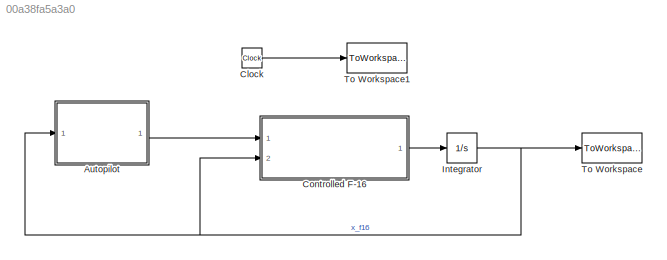
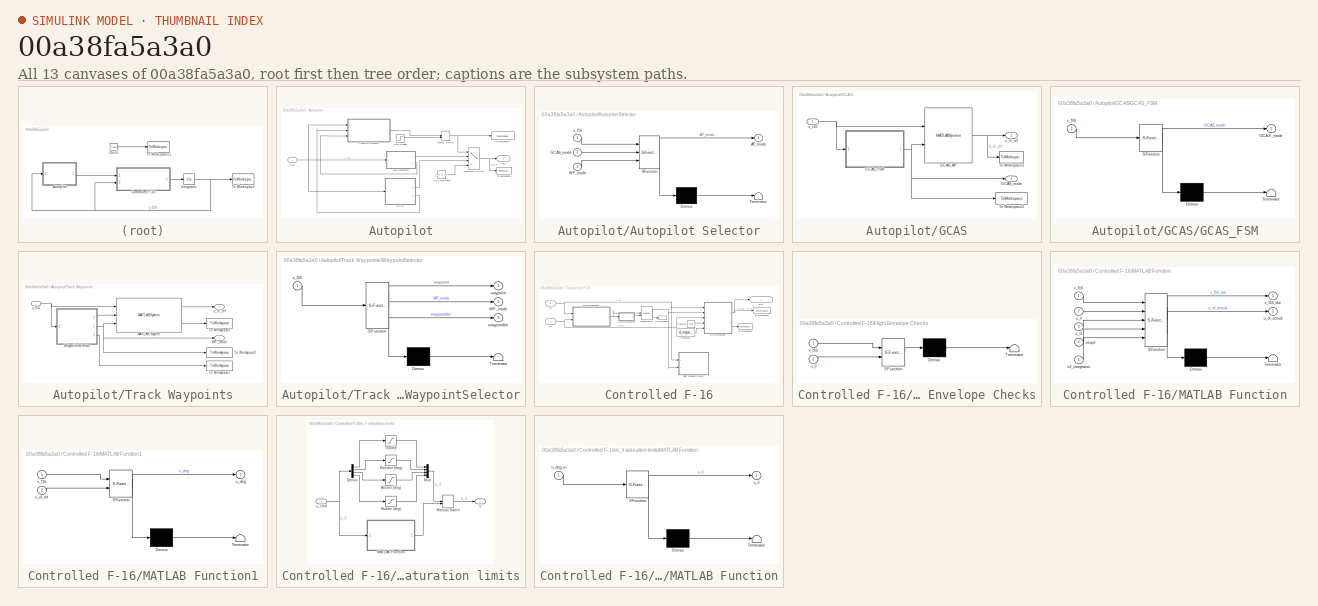
[diagram: thumbnail index - all 13 canvases of the model, root first then tree order]
MODEL slx_00a38fa5a3a0
KIND model
CONFIG AbsTol = auto
CONFIG EnableMultiTasking = off
CONFIG FixedStep = 1/30.0
CONFIG InitFcn = if ~exist("t_end", "var")\n   fprintf("Please manually add the 'main' folder recursively to Matlab's PATH, set it as your current working directory, and run the SimConfig.m script before executing Simulink model.") \nend\n\n% Add simulink directories to MATLAB Path\n%filepath=get_param(gcs, 'filename');\n%path_sim = genpath(fileparts(filepath));\n%addpath(path_sim);\n\n% Configure workspace for sim\n%SimCon...<+4ch>
CONFIG MaxStep = auto
CONFIG MinStep = auto
CONFIG RelTol = 1e-3
CONFIG SampleTimeConstraint = Unconstrained
CONFIG Solver = VariableStepAuto
CONFIG SolverName = VariableStepAuto
CONFIG StartTime = 0.0
CONFIG StopFcn = %handleSimResults;
CONFIG StopTime = t_end
BLOCK [SubSystem] Autopilot
  Ports = [1, 1]
  RequestExecContextInheritance = off
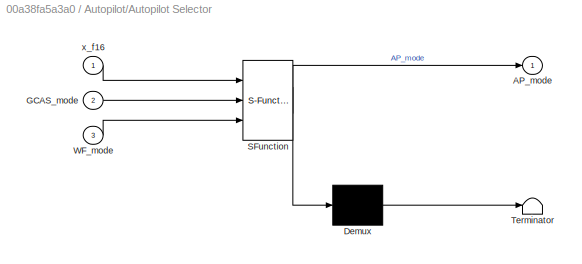
BLOCK [SubSystem] Autopilot/Autopilot Selector
  ErrorFcn = Stateflow.Translate.translate
  PermitHierarchicalResolution = ExplicitOnly
  Ports = [3, 1]
  RequestExecContextInheritance = off
  SFBlockType = Chart
  TreatAsAtomicUnit = on
BLOCK [Demux] Autopilot/Autopilot Selector/ Demux 
  Outputs = 1
  Ports = [1, 1]
BLOCK [S-Function] Autopilot/Autopilot Selector/ SFunction 
  EnableBusSupport = on
  FunctionName = sf_sfun
  Parameters = GCAS_config,SIM_config
  PortCounts = [3 2]
  Ports = [3, 2]
  SFcnIsStateOwnerBlock = off
  SFunctionDeploymentMode = off
  Tag = Stateflow S-Function AeroBenchSim_2017b 8
BLOCK [Terminator] Autopilot/Autopilot Selector/ Terminator 
BLOCK [Outport] Autopilot/Autopilot Selector/AP_mode
  IconDisplay = Port number
BLOCK [Inport] Autopilot/Autopilot Selector/GCAS_mode
  IconDisplay = Port number
  Port = 2
BLOCK [Inport] Autopilot/Autopilot Selector/WF_mode
  IconDisplay = Port number
  Port = 3
BLOCK [Inport] Autopilot/Autopilot Selector/x_f16
  IconDisplay = Port number
BLOCK [MultiPortSwitch] Autopilot/Controller Switch
  DataPortForDefault = Additional data port
  DataPortOrder = Zero-based contiguous
  DiagnosticForDefault = Warning
  Inputs = 2
  Ports = [4, 1]
  SaturateOnIntegerOverflow = off
  zeroidx = on
BLOCK [SubSystem] Autopilot/GCAS
  Ports = [1, 2]
  RequestExecContextInheritance = off
BLOCK [MATLABSystem] Autopilot/GCAS/GCAS_AP
  MaskDisplay = disp('GCAS');\nport_label('input',1,'x_f16');\nport_label('input',2,'GCAS_mode');\nport_label('output',1,'u_ol_ref');
  MaskType = GCAS
  Ports = [2, 1]
  SimulateUsing = Interpreted execution
  System = GCAS
BLOCK [SubSystem] Autopilot/GCAS/GCAS_FSM
  ErrorFcn = Stateflow.Translate.translate
  PermitHierarchicalResolution = ExplicitOnly
  Ports = [1, 1]
  RequestExecContextInheritance = off
  SFBlockType = Chart
  TreatAsAtomicUnit = on
BLOCK [Demux] Autopilot/GCAS/GCAS_FSM/ Demux 
  Outputs = 1
  Ports = [1, 1]
BLOCK [S-Function] Autopilot/GCAS/GCAS_FSM/ SFunction 
  EnableBusSupport = on
  FunctionName = sf_sfun
  Parameters = GCAS_config
  PortCounts = [1 2]
  Ports = [1, 2]
  SFcnIsStateOwnerBlock = off
  SFunctionDeploymentMode = off
  Tag = Stateflow S-Function AeroBenchSim_2017b 6
BLOCK [Terminator] Autopilot/GCAS/GCAS_FSM/ Terminator 
BLOCK [Outport] Autopilot/GCAS/GCAS_FSM/GCAS_mode
  IconDisplay = Port number
BLOCK [Inport] Autopilot/GCAS/GCAS_FSM/x_f16
  IconDisplay = Port number
BLOCK [Outport] Autopilot/GCAS/GCAS_mode
  IconDisplay = Port number
  Port = 2
BLOCK [ToWorkspace] Autopilot/GCAS/To Workspace2
  FixptAsFi = on
  MaxDataPoints = inf
  Ports = [1]
  SampleTime = SIM_config.t_sample
  Save2DSignal = 2-D array (concatenate along first dimension)
  VariableName = GCAS_mode_out
BLOCK [ToWorkspace] Autopilot/GCAS/To Workspace3
  FixptAsFi = on
  MaxDataPoints = inf
  Ports = [1]
  SampleTime = SIM_config.t_sample
  Save2DSignal = 2-D array (concatenate along first dimension)
  VariableName = GCAS_u_ol_out
BLOCK [Outport] Autopilot/GCAS/u_ol_ref
  IconDisplay = Port number
BLOCK [Inport] Autopilot/GCAS/x_f16
  IconDisplay = Port number
BLOCK [ManualSwitch] Autopilot/Manual Switch
BLOCK [Outport] Autopilot/Out1
  IconDisplay = Signal name
BLOCK [Constant] Autopilot/Stick Free Input
  SampleTime = SIM_config.t_sample
  Value = [0.5; 0; 0; 0]
BLOCK [Step] Autopilot/Time Trigger
  SampleTime = 0
  Time = 15
BLOCK [ToWorkspace] Autopilot/To Workspace1
  FixptAsFi = on
  MaxDataPoints = inf
  Ports = [1]
  SampleTime = SIM_config.t_sample
  Save2DSignal = 2-D array (concatenate along first dimension)
  VariableName = u_ol_ref_out
BLOCK [ToWorkspace] Autopilot/To Workspace4
  FixptAsFi = on
  MaxDataPoints = inf
  Ports = [1]
  SampleTime = SIM_config.t_sample
  Save2DSignal = 2-D array (concatenate along first dimension)
  VariableName = autopilot_mode_out
BLOCK [SubSystem] Autopilot/Track Waypoints
  Ports = [1, 2]
  RequestExecContextInheritance = off
BLOCK [MATLABSystem] Autopilot/Track Waypoints/MATLAB System
  MaskDisplay = disp('WaypointFollower');\nport_label('input',1,'x_f16');\nport_label('input',2,'waypoint');\nport_label('input',3,'WF_mode');\nport_label('output',1,'u_ol_ref');\nport_label('output',2,'psi_cmd');
  MaskType = WaypointFollower
  Ports = [3, 2]
  SimulateUsing = Interpreted execution
  System = WaypointFollower
BLOCK [ToWorkspace] Autopilot/Track Waypoints/To Workspace1
  FixptAsFi = on
  MaxDataPoints = inf
  Ports = [1]
  SampleTime = SIM_config.t_sample
  Save2DSignal = 2-D array (concatenate along first dimension)
  VariableName = WF_iter_out
BLOCK [ToWorkspace] Autopilot/Track Waypoints/To Workspace2
  FixptAsFi = on
  MaxDataPoints = inf
  Ports = [1]
  SampleTime = SIM_config.t_sample
  Save2DSignal = 2-D array (concatenate along first dimension)
  VariableName = WF_mode_out
BLOCK [ToWorkspace] Autopilot/Track Waypoints/To Workspace3
  FixptAsFi = on
  MaxDataPoints = inf
  Ports = [1]
  SampleTime = SIM_config.t_sample
  Save2DSignal = 2-D array (concatenate along first dimension)
  VariableName = psi_cmd_out
BLOCK [Outport] Autopilot/Track Waypoints/WF_mode
  IconDisplay = Port number
  Port = 2
BLOCK [SubSystem] Autopilot/Track Waypoints/WaypointSelector
  ErrorFcn = Stateflow.Translate.translate
  PermitHierarchicalResolution = ExplicitOnly
  Ports = [1, 3]
  RequestExecContextInheritance = off
  SFBlockType = Chart
  TreatAsAtomicUnit = on
BLOCK [Demux] Autopilot/Track Waypoints/WaypointSelector/ Demux 
  Outputs = 1
  Ports = [1, 1]
BLOCK [S-Function] Autopilot/Track Waypoints/WaypointSelector/ SFunction 
  EnableBusSupport = on
  FunctionName = sf_sfun
  Parameters = WF_config,waypoints
  PortCounts = [1 4]
  Ports = [1, 4]
  SFcnIsStateOwnerBlock = off
  SFunctionDeploymentMode = off
  Tag = Stateflow S-Function AeroBenchSim_2017b 7
BLOCK [Terminator] Autopilot/Track Waypoints/WaypointSelector/ Terminator 
BLOCK [Outport] Autopilot/Track Waypoints/WaypointSelector/WF_mode
  IconDisplay = Port number
  Port = 2
BLOCK [Outport] Autopilot/Track Waypoints/WaypointSelector/waypoint
  IconDisplay = Port number
BLOCK [Outport] Autopilot/Track Waypoints/WaypointSelector/waypointIter
  IconDisplay = Port number
  Port = 3
BLOCK [Inport] Autopilot/Track Waypoints/WaypointSelector/x_f16
  IconDisplay = Port number
BLOCK [Outport] Autopilot/Track Waypoints/u_ol_ref
  IconDisplay = Port number
BLOCK [Inport] Autopilot/Track Waypoints/x_f16
  IconDisplay = Port number
BLOCK [Inport] Autopilot/x_f16
  IconDisplay = Signal name
  VarSizeSig = No
BLOCK [Clock] Clock
BLOCK [SubSystem] Controlled F-16
  Ports = [2, 1]
  RequestExecContextInheritance = off
BLOCK [Constant] Controlled F-16/Constant
  Value = xequil
BLOCK [Constant] Controlled F-16/Constant1
  Value = v2_integrators
BLOCK [SubSystem] Controlled F-16/Flight Envelope Checks
  ErrorFcn = Stateflow.Translate.translate
  PermitHierarchicalResolution = ExplicitOnly
  Ports = [2]
  RequestExecContextInheritance = off
  SFBlockType = Chart
  TreatAsAtomicUnit = on
BLOCK [Demux] Controlled F-16/Flight Envelope Checks/ Demux 
  Outputs = 1
  Ports = [1, 1]
BLOCK [S-Function] Controlled F-16/Flight Envelope Checks/ SFunction 
  EnableBusSupport = on
  FunctionName = sf_sfun
  Parameters = flightLimits
  PortCounts = [2 1]
  Ports = [2, 1]
  SFcnIsStateOwnerBlock = off
  SFunctionDeploymentMode = off
  Tag = Stateflow S-Function AeroBenchSim_2017b 3
BLOCK [Terminator] Controlled F-16/Flight Envelope Checks/ Terminator 
BLOCK [Inport] Controlled F-16/Flight Envelope Checks/u_il
  IconDisplay = Port number
  Port = 2
BLOCK [Inport] Controlled F-16/Flight Envelope Checks/x_f16
  IconDisplay = Port number
BLOCK [Inport] Controlled F-16/In1
  IconDisplay = Signal name
  Port = 2
BLOCK [Inport] Controlled F-16/In2
  IconDisplay = Signal name
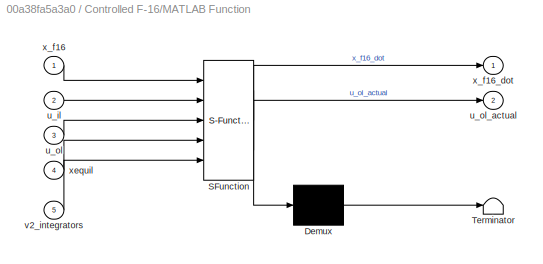
BLOCK [SubSystem] Controlled F-16/MATLAB Function
  Description = Given aircraft state and raw control inputs, uses subf16_morelli to generate aircraft state derivatives
  ErrorFcn = Stateflow.Translate.translate
  PermitHierarchicalResolution = ExplicitOnly
  Ports = [5, 2]
  RequestExecContextInheritance = off
  SFBlockType = MATLAB Function
  Tag = F-16
  TreatAsAtomicUnit = on
BLOCK [Demux] Controlled F-16/MATLAB Function/ Demux 
  Outputs = 1
  Ports = [1, 1]
BLOCK [S-Function] Controlled F-16/MATLAB Function/ SFunction 
  EnableBusSupport = on
  FunctionName = sf_sfun
  PortCounts = [5 3]
  Ports = [5, 3]
  SFcnIsStateOwnerBlock = off
  SFunctionDeploymentMode = off
  Tag = Stateflow S-Function AeroBenchSim_2017b 2
BLOCK [Terminator] Controlled F-16/MATLAB Function/ Terminator 
BLOCK [Inport] Controlled F-16/MATLAB Function/u_il
  IconDisplay = Port number
  Port = 2
BLOCK [Inport] Controlled F-16/MATLAB Function/u_ol
  IconDisplay = Port number
  Port = 3
BLOCK [Outport] Controlled F-16/MATLAB Function/u_ol_actual
  IconDisplay = Port number
  Port = 2
BLOCK [Inport] Controlled F-16/MATLAB Function/v2_integrators
  IconDisplay = Port number
  Port = 5
BLOCK [Inport] Controlled F-16/MATLAB Function/x_f16
  IconDisplay = Port number
BLOCK [Outport] Controlled F-16/MATLAB Function/x_f16_dot
  IconDisplay = Port number
BLOCK [Inport] Controlled F-16/MATLAB Function/xequil
  IconDisplay = Port number
  Port = 4
BLOCK [SubSystem] Controlled F-16/MATLAB Function1
  ErrorFcn = Stateflow.Translate.translate
  PermitHierarchicalResolution = ExplicitOnly
  Ports = [2, 1]
  RequestExecContextInheritance = off
  SFBlockType = MATLAB Function
  TreatAsAtomicUnit = on
BLOCK [Demux] Controlled F-16/MATLAB Function1/ Demux 
  Outputs = 1
  Ports = [1, 1]
BLOCK [S-Function] Controlled F-16/MATLAB Function1/ SFunction 
  EnableBusSupport = on
  FunctionName = sf_sfun
  Parameters = K_lqr,uequil,xequil
  PortCounts = [2 2]
  Ports = [2, 2]
  SFcnIsStateOwnerBlock = off
  SFunctionDeploymentMode = off
  Tag = Stateflow S-Function AeroBenchSim_2017b 1
BLOCK [Terminator] Controlled F-16/MATLAB Function1/ Terminator 
BLOCK [Outport] Controlled F-16/MATLAB Function1/u_deg
  IconDisplay = Port number
BLOCK [Inport] Controlled F-16/MATLAB Function1/u_ol_ref
  IconDisplay = Port number
  Port = 2
BLOCK [Inport] Controlled F-16/MATLAB Function1/x_f16
  IconDisplay = Port number
BLOCK [ManualSwitch] Controlled F-16/Manual Switch
  CurrentSetting = 0
BLOCK [Outport] Controlled F-16/Out1
  IconDisplay = Signal name
BLOCK [ToWorkspace] Controlled F-16/To Workspace1
  FixptAsFi = on
  MaxDataPoints = inf
  Ports = [1]
  SampleTime = SIM_config.t_sample
  VariableName = u_il_out
BLOCK [ToWorkspace] Controlled F-16/To Workspace2
  FixptAsFi = on
  MaxDataPoints = inf
  Ports = [1]
  SampleTime = SIM_config.t_sample
  VariableName = u_ol_out
BLOCK [ToWorkspace] Controlled F-16/To Workspace3
  FixptAsFi = on
  MaxDataPoints = inf
  Ports = [1]
  SampleTime = SIM_config.t_sample
  VariableName = x_f16_dot_out
BLOCK [SubSystem] Controlled F-16/u_il saturation limits
  Ports = [1, 1]
  RequestExecContextInheritance = off
BLOCK [Saturate] Controlled F-16/u_il saturation limits/Aileron (deg) 
  InputPortMap = u0
  LowerLimit = ctrlLimits.aileronMin
  Ports = [1, 1]
  UpperLimit = ctrlLimits.aileronMax
BLOCK [Demux] Controlled F-16/u_il saturation limits/Demux
  DisplayOption = bar
  Ports = [1, 4]
BLOCK [Saturate] Controlled F-16/u_il saturation limits/Elevator (deg)
  InputPortMap = u0
  LowerLimit = ctrlLimits.elevatorMin
  Ports = [1, 1]
  UpperLimit = ctrlLimits.elevatorMax
BLOCK [SubSystem] Controlled F-16/u_il saturation limits/MATLAB Function
  ErrorFcn = Stateflow.Translate.translate
  PermitHierarchicalResolution = ExplicitOnly
  Ports = [1, 1]
  RequestExecContextInheritance = off
  SFBlockType = MATLAB Function
  TreatAsAtomicUnit = on
BLOCK [Demux] Controlled F-16/u_il saturation limits/MATLAB Function/ Demux 
  Outputs = 1
  Ports = [1, 1]
BLOCK [S-Function] Controlled F-16/u_il saturation limits/MATLAB Function/ SFunction 
  EnableBusSupport = on
  FunctionName = sf_sfun
  Parameters = ctrlLimits,warnOn
  PortCounts = [1 2]
  Ports = [1, 2]
  SFcnIsStateOwnerBlock = off
  SFunctionDeploymentMode = off
  Tag = Stateflow S-Function AeroBenchSim_2017b 5
BLOCK [Terminator] Controlled F-16/u_il saturation limits/MATLAB Function/ Terminator 
BLOCK [Inport] Controlled F-16/u_il saturation limits/MATLAB Function/u_deg_in
  IconDisplay = Port number
BLOCK [Outport] Controlled F-16/u_il saturation limits/MATLAB Function/u_il
  IconDisplay = Port number
BLOCK [ManualSwitch] Controlled F-16/u_il saturation limits/Manual Switch
BLOCK [Mux] Controlled F-16/u_il saturation limits/Mux
  DisplayOption = bar
  Ports = [4, 1]
BLOCK [Saturate] Controlled F-16/u_il saturation limits/Rudder (deg)
  InputPortMap = u0
  LowerLimit = ctrlLimits.rudderMin
  Ports = [1, 1]
  UpperLimit = ctrlLimits.rudderMax
BLOCK [Saturate] Controlled F-16/u_il saturation limits/Throttle
  InputPortMap = u0
  LowerLimit = ctrlLimits.throttleMin
  Ports = [1, 1]
  UpperLimit = ctrlLimits.throttleMax
BLOCK [Outport] Controlled F-16/u_il saturation limits/u
  IconDisplay = Signal name
  LockScale = on
  PortDimensions = 4
BLOCK [Inport] Controlled F-16/u_il saturation limits/u_cmd
  IconDisplay = Signal name
BLOCK [Integrator] Integrator
  InitialCondition = x_f16_0
  Ports = [1, 1]
BLOCK [ToWorkspace] To Workspace
  FixptAsFi = on
  MaxDataPoints = inf
  Ports = [1]
  SampleTime = SIM_config.t_sample
  VariableName = x_f16_out
BLOCK [ToWorkspace] To Workspace1
  FixptAsFi = on
  MaxDataPoints = inf
  Ports = [1]
  SampleTime = SIM_config.t_sample
  VariableName = t_out
LINE Autopilot/Autopilot Selector:1 -> Autopilot/Manual Switch:1
NET Autopilot/Controller Switch:1 -> Autopilot/Out1:1, Autopilot/To Workspace1:1
NET Autopilot/GCAS/GCAS_AP:1 -> Autopilot/GCAS/To Workspace3:1, Autopilot/GCAS/u_ol_ref:1
NET Autopilot/GCAS/GCAS_FSM:1 -> Autopilot/GCAS/GCAS_AP:2, Autopilot/GCAS/GCAS_mode:1, Autopilot/GCAS/To Workspace2:1
NET Autopilot/GCAS/x_f16:1 -> Autopilot/GCAS/GCAS_AP:1, Autopilot/GCAS/GCAS_FSM:1
LINE Autopilot/GCAS:1 -> Autopilot/Controller Switch:3
LINE Autopilot/GCAS:2 -> Autopilot/Autopilot Selector:2
NET Autopilot/Manual Switch:1 -> Autopilot/Controller Switch:1, Autopilot/To Workspace4:1
LINE Autopilot/Stick Free Input:1 -> Autopilot/Controller Switch:4
LINE Autopilot/Time Trigger:1 -> Autopilot/Manual Switch:2
LINE Autopilot/Track Waypoints/MATLAB System:1 -> Autopilot/Track Waypoints/u_ol_ref:1
LINE Autopilot/Track Waypoints/MATLAB System:2 -> Autopilot/Track Waypoints/To Workspace3:1
LINE Autopilot/Track Waypoints/WaypointSelector:1 -> Autopilot/Track Waypoints/MATLAB System:2
NET Autopilot/Track Waypoints/WaypointSelector:2 -> Autopilot/Track Waypoints/MATLAB System:3, Autopilot/Track Waypoints/To Workspace2:1, Autopilot/Track Waypoints/WF_mode:1
LINE Autopilot/Track Waypoints/WaypointSelector:3 -> Autopilot/Track Waypoints/To Workspace1:1
NET Autopilot/Track Waypoints/x_f16:1 -> Autopilot/Track Waypoints/MATLAB System:1, Autopilot/Track Waypoints/WaypointSelector:1
LINE Autopilot/Track Waypoints:1 -> Autopilot/Controller Switch:2
LINE Autopilot/Track Waypoints:2 -> Autopilot/Autopilot Selector:3
NET Autopilot/x_f16:1 -> Autopilot/Autopilot Selector:1, Autopilot/GCAS:1, Autopilot/Track Waypoints:1
LINE Autopilot:1 -> Controlled F-16:1
LINE Clock:1 -> To Workspace1:1
LINE Controlled F-16/Constant1:1 -> Controlled F-16/MATLAB Function:5
LINE Controlled F-16/Constant:1 -> Controlled F-16/MATLAB Function:4
NET Controlled F-16/In1:1 -> Controlled F-16/Flight Envelope Checks:1, Controlled F-16/MATLAB Function1:1, Controlled F-16/MATLAB Function:1
NET Controlled F-16/In2:1 -> Controlled F-16/MATLAB Function1:2, Controlled F-16/MATLAB Function:3
NET Controlled F-16/MATLAB Function1:1 -> Controlled F-16/Manual Switch:1, Controlled F-16/u_il saturation limits:1
NET Controlled F-16/MATLAB Function:1 -> Controlled F-16/Out1:1, Controlled F-16/To Workspace3:1
LINE Controlled F-16/MATLAB Function:2 -> Controlled F-16/To Workspace2:1
NET Controlled F-16/Manual Switch:1 -> Controlled F-16/Flight Envelope Checks:2, Controlled F-16/MATLAB Function:2, Controlled F-16/To Workspace1:1
LINE Controlled F-16/u_il saturation limits/Aileron (deg) :1 -> Controlled F-16/u_il saturation limits/Mux:3
LINE Controlled F-16/u_il saturation limits/Demux:1 -> Controlled F-16/u_il saturation limits/Throttle:1
LINE Controlled F-16/u_il saturation limits/Demux:2 -> Controlled F-16/u_il saturation limits/Elevator (deg):1
LINE Controlled F-16/u_il saturation limits/Demux:3 -> Controlled F-16/u_il saturation limits/Aileron (deg) :1
LINE Controlled F-16/u_il saturation limits/Demux:4 -> Controlled F-16/u_il saturation limits/Rudder (deg):1
LINE Controlled F-16/u_il saturation limits/Elevator (deg):1 -> Controlled F-16/u_il saturation limits/Mux:2
LINE Controlled F-16/u_il saturation limits/MATLAB Function:1 -> Controlled F-16/u_il saturation limits/Manual Switch:2
LINE Controlled F-16/u_il saturation limits/Manual Switch:1 -> Controlled F-16/u_il saturation limits/u:1
LINE Controlled F-16/u_il saturation limits/Mux:1 -> Controlled F-16/u_il saturation limits/Manual Switch:1
LINE Controlled F-16/u_il saturation limits/Rudder (deg):1 -> Controlled F-16/u_il saturation limits/Mux:4
LINE Controlled F-16/u_il saturation limits/Throttle:1 -> Controlled F-16/u_il saturation limits/Mux:1
NET Controlled F-16/u_il saturation limits/u_cmd:1 -> Controlled F-16/u_il saturation limits/Demux:1, Controlled F-16/u_il saturation limits/MATLAB Function:1
LINE Controlled F-16/u_il saturation limits:1 -> Controlled F-16/Manual Switch:2
LINE Controlled F-16:1 -> Integrator:1
NET Integrator:1 -> Autopilot:1, Controlled F-16:2, To Workspace:1
note: NET lines group one-source signal fan-out (src -> all destinations, sorted); 1:1 wires keep LINE
CHART Controlled F-16/MATLAB Function1 states=1 transitions=1
  STATE_LABEL 'eML_blk_kernel()'
  STATE_LABEL "SCRIPT:\nfunction u_deg  = LQR_controller(...\n    x_f16, u_ol_ref, xequil, uequil, K_lqr)\n%LQR_CONTROLLER Given x_f16, ref control, and workspace vars, evaluates\n%u_deg (4x1)\n\n%Declare function as extrinsic\ncoder.extrinsic('getInnerLoopControl');\n\nu_deg = zeros(4,1);\nu_deg = getInnerLoopControl(x_f16, u_ol_ref, xequil, uequil, K_lqr);\n\nend\n"
CHART Controlled F-16/MATLAB Function states=1 transitions=1
  STATE_LABEL 'eML_blk_kernel()'
  STATE_LABEL 'SCRIPT:\nfunction [x_f16_dot, u_ol_actual] = F16_plant(x_f16, u_il, u_ol, xequil, v2_integrators)\n\n%Declare function as extrinsic\ncoder.extrinsic(\'subf16_morelli\');\n\n% Preallocate so simulink knows size of outputs\n% Note: alternate method is to specify using "Edit Data" in menu\nx_f16_dot = zeros(size(x_f16));\nu_ol_actual = zeros(4,1);\n\nx_f16_delta = x_f16 - [xequil; 0; 0; 0];\n\n[x_f16_dot, u_ol_actu...<+439ch>'
CHART Controlled F-16/Flight Envelope Checks states=5 transitions=6
  STATE_LABEL "CRASH\nentry: fprintf('CRASHED\\n'),\n % F16_crashed = true;"
  STATE_LABEL "SAFE\nentry: fprintf('In flight envelope\\n');"
  STATE_LABEL "OUT_OF_MODEL_RANGE\nentry: fprintf('Model no longer valid, stopping sim\\n')\n stopSimulink();"
  STATE_LABEL "STALL\nentry: fprintf('STALLED\\n'),\n % F16_stalled = true;"
  STATE_LABEL "OVERSTRESS\nentry: fprintf('OVERSTRESSED\\n'),\n % F16_overstressed = true;"
CHART Controlled F-16/u_il saturation limits/MATLAB Function states=1 transitions=1
  STATE_LABEL 'eML_blk_kernel()'
  STATE_LABEL 'SCRIPT:\nfunction u_il = control_saturation(u_deg_in, ctrlLimits, warnOn)\n\nu_il = applyCtrlSatLimits(u_deg_in,ctrlLimits,warnOn);\n\nend\n'
CHART Autopilot/GCAS/GCAS_FSM states=4 transitions=6
  STATE_LABEL 'ROLL_LEVEL\nentry: GCAS_mode = 1;\n printGCASUpdate();'
  STATE_LABEL 'SAFE\nentry: GCAS_mode = 0;\n printGCASUpdate();'
  STATE_LABEL 'PULL_UP\nentry: GCAS_mode = 2;\n printGCASUpdate();'
  STATE_LABEL 'printGCASUpdate'
  STATE_LABEL "SCRIPT:\nfunction printGCASUpdate\n% Prints update to Simulink console\n\nfprintf('Entering GCAS_mode %f at time %.6f\\n', round(GCAS_mode), t);\n    \nend\n"
CHART Autopilot/Track Waypoints/WaypointSelector states=4 transitions=4
  STATE_LABEL 'isCloseEnough = closeEnoughToWaypoint'
  STATE_LABEL 'SCRIPT:\nfunction isCloseEnough = closeEnoughToWaypoint()\n\n[~,~,~,~,slant_range] = WaypointFollower.getWaypointData(x_f16,waypoint);  \n            \nisCloseEnough = slant_range < WF_config.WP_RANGE_THRESHOLD;\n    \n% isCloseEnough = horiz_range < WF_config.WP_VERT_RANGE_THRESHOLD && ...\n%     vert_range < WF_config.WP_HORIZ_RANGE_THRESHOLD;\n\nend\n'
  STATE_LABEL 'TRACK_TO_WAYPOINT\nentry: waypoint = waypoints(waypointIter,:);\n WF_mode = 0;\nexit: printWaypointUpdate();\n waypointIter = waypointIter + 1;\n'
  STATE_LABEL "COMPLETE\nentry: WF_mode = 1;\n waypoint = waypoints(waypointIter - 1,:);\n fprintf('Waypoint navigation complete\\n');"
  STATE_LABEL 'printWaypointUpdate'
  STATE_LABEL "SCRIPT:\nfunction printWaypointUpdate()\n% Prints update to Simulink console\n\nfprintf('Waypoint Iter: %d at time %.5f, Target: [ %6.0f E, %6.0f N, %6.0f U ]\\n', ...\n    waypointIter, t, waypoint(1), waypoint(2), waypoint(3));\n    \nend\n"
CHART Autopilot/Autopilot Selector states=4 transitions=8
  STATE_LABEL "USE_GCAS_AP\nentry: AP_mode  = 1;\n fprintf('Activate GCAS\\n');"
  STATE_LABEL "USE_WF_AP\nentry: AP_mode = 0;\n fprintf('Follow Waypoints\\n');"
  STATE_LABEL "WF_COMPLETE\nentry:  fprintf('Waypoint Following Complete\\n');\n"
  STATE_LABEL 'SIM_COMPLETE\nentry: stopSimulink();'
